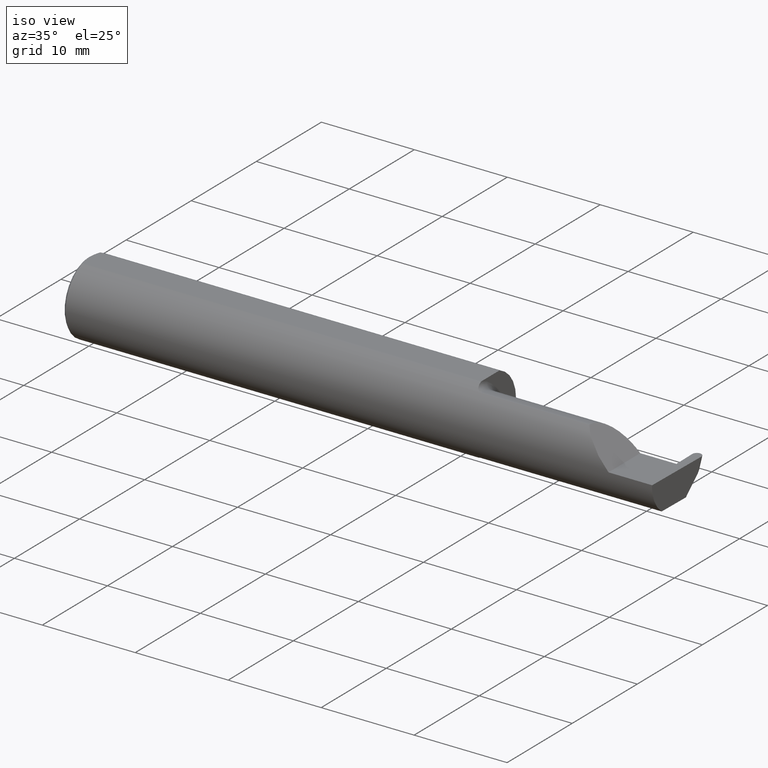
[diagram: clean part render]
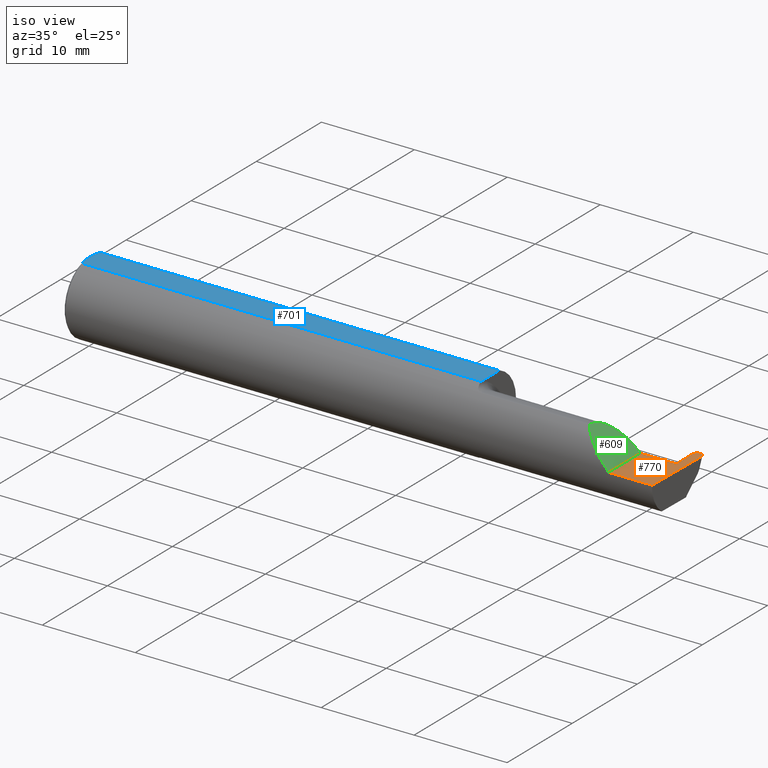
[diagram: same view with three faces highlighted in distinct colors, each labeled with its STEP entity id]
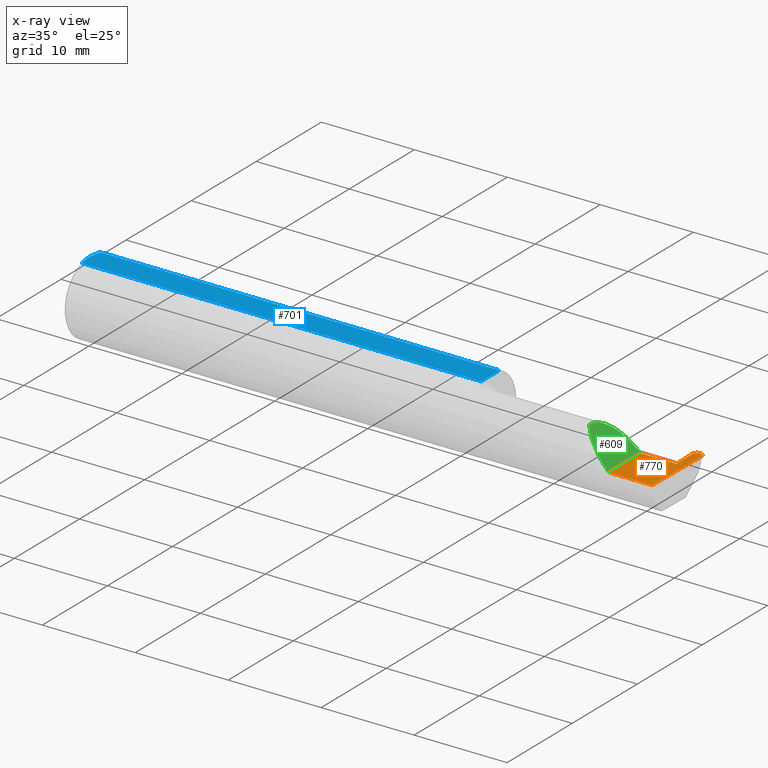
[diagram: x-ray of the same camera — body ghosted, the three highlighted faces saturated]
A machine part, iso view with three faces highlighted in distinct colors.
The next image is the same camera in x-ray (body ghosted, the three faces saturated) — at least one of them is partly hidden behind the body in this view.
Their STEP definitions:

[orange] entity #770 — the highlighted planar face has unit normal (-0, 0, -1).
#31 = VERTEX_POINT ( 'NONE', #742 ) ;
#37 = VECTOR ( 'NONE', #378, 39.37007874015748143 ) ;
#58 = CARTESIAN_POINT ( 'NONE',  ( 2.500000000000000000, -0.2500000000000000555, 0.000000000000000000 ) ) ;
#62 = VERTEX_POINT ( 'NONE', #786 ) ;
#81 = VECTOR ( 'NONE', #454, 39.37007874015748143 ) ;
#88 = ORIENTED_EDGE ( 'NONE', *, *, #279, .F. ) ;
#103 = AXIS2_PLACEMENT_3D ( 'NONE', #58, #739, #602 ) ;
#104 = VERTEX_POINT ( 'NONE', #316 ) ;
#112 = EDGE_CURVE ( 'NONE', #221, #62, #357, .T. ) ;
#124 = ORIENTED_EDGE ( 'NONE', *, *, #160, .T. ) ;
#130 = ORIENTED_EDGE ( 'NONE', *, *, #613, .F. ) ;
#132 = CARTESIAN_POINT ( 'NONE',  ( 1.699999999999999956, 0.03590000000000000135, 9.797174393178831081E-17 ) ) ;
#147 = CARTESIAN_POINT ( 'NONE',  ( 2.480536137934067575, 0.1539000000000000090, 0.000000000000000000 ) ) ;
#148 = CARTESIAN_POINT ( 'NONE',  ( 2.499997065210553426, 0.1342945264389270033, 0.000000000000000000 ) ) ;
#153 = ORIENTED_EDGE ( 'NONE', *, *, #399, .F. ) ;
#160 = EDGE_CURVE ( 'NONE', #582, #62, #541, .T. ) ;
#168 = EDGE_CURVE ( 'NONE', #104, #526, #760, .T. ) ;
#173 = VECTOR ( 'NONE', #654, 39.37007874015748143 ) ;
#174 = CARTESIAN_POINT ( 'NONE',  ( 2.499981158297549744, 0.1333832200032812054, 0.000000000000000000 ) ) ;
#175 = DIRECTION ( 'NONE',  ( 1.000000000000000000, -0.000000000000000000, -0.000000000000000000 ) ) ;
#204 = CARTESIAN_POINT ( 'NONE',  ( 2.463182057637018030, 0.03590000000000000135, 0.000000000000000000 ) ) ;
#209 = LINE ( 'NONE', #522, #354 ) ;
#210 = ORIENTED_EDGE ( 'NONE', *, *, #314, .F. ) ;
#221 = VERTEX_POINT ( 'NONE', #147 ) ;
#243 = FACE_OUTER_BOUND ( 'NONE', #642, .T. ) ;
#252 = PLANE ( 'NONE',  #103 ) ;
#258 = CARTESIAN_POINT ( 'NONE',  ( 2.461270922331974642, 0.1453888682971902213, 2.390809088810166648E-18 ) ) ;
#260 = CARTESIAN_POINT ( 'NONE',  ( 2.492285715036194116, 0.1538999999999999257, -1.422725471777829947E-18 ) ) ;
#271 = CARTESIAN_POINT ( 'NONE',  ( 3.749399456654646757E-32, -0.1560999999999999333, 3.061616997868383634E-16 ) ) ;
#279 = EDGE_CURVE ( 'NONE', #582, #513, #396, .T. ) ;
#314 = EDGE_CURVE ( 'NONE', #444, #488, #209, .T. ) ;
#316 = CARTESIAN_POINT ( 'NONE',  ( 2.310000000000000053, 0.03590000000000000135, 9.797174393178831081E-17 ) ) ;
#326 = CARTESIAN_POINT ( 'NONE',  ( 2.500190717668024920, 0.1453888682971899160, -2.390809088810165492E-18 ) ) ;
#346 = CARTESIAN_POINT ( 'NONE',  ( 2.494928209896765114, -0.1560999999999999888, 0.000000000000000000 ) ) ;
#354 = VECTOR ( 'NONE', #457, 39.37007874015748854 ) ;
#357 = LINE ( 'NONE', #604, #360 ) ;
#360 = VECTOR ( 'NONE', #175, 39.37007874015748143 ) ;
#362 = DIRECTION ( 'NONE',  ( -0.000000000000000000, 1.000000000000000000, -0.000000000000000000 ) ) ;
#378 = DIRECTION ( 'NONE',  ( 1.000000000000000000, 0.000000000000000000, 0.000000000000000000 ) ) ;
#384 = EDGE_CURVE ( 'NONE', #513, #31, #649, .T. ) ;
#396 = LINE ( 'NONE', #148, #81 ) ;
#399 = EDGE_CURVE ( 'NONE', #526, #444, #761, .T. ) ;
#417 = CARTESIAN_POINT ( 'NONE',  ( 2.463182057637018030, 0.03590000000000000135, 0.000000000000000000 ) ) ;
#420 = VECTOR ( 'NONE', #516, 39.37007874015748143 ) ;
#440 = CARTESIAN_POINT ( 'NONE',  ( 2.461480481702449818, 0.1333832200032812332, 0.000000000000000000 ) ) ;
#444 = VERTEX_POINT ( 'NONE', #417 ) ;
#454 = DIRECTION ( 'NONE',  ( -0.01745240643727612520, -0.9998476951563912696, 0.000000000000000000 ) ) ;
#457 = DIRECTION ( 'NONE',  ( -0.01745240643727553193, 0.9998476951563912696, -0.000000000000000000 ) ) ;
#478 = CARTESIAN_POINT ( 'NONE',  ( 2.461480481702449818, 0.1333832200032812332, 0.000000000000000000 ) ) ;
#488 = VERTEX_POINT ( 'NONE', #478 ) ;
#490 = CARTESIAN_POINT ( 'NONE',  ( 2.469175924963806334, 0.1539000000000003143, 1.422725471777793932E-18 ) ) ;
#493 = ORIENTED_EDGE ( 'NONE', *, *, #384, .F. ) ;
#513 = VERTEX_POINT ( 'NONE', #346 ) ;
#516 = DIRECTION ( 'NONE',  ( -1.000000000000000000, -0.000000000000000000, -0.000000000000000000 ) ) ;
#522 = CARTESIAN_POINT ( 'NONE',  ( 2.461464574789446136, 0.1342945264389270033, 0.000000000000000000 ) ) ;
#526 = VERTEX_POINT ( 'NONE', #723 ) ;
#534 = ORIENTED_EDGE ( 'NONE', *, *, #168, .F. ) ;
#541 =( BOUNDED_CURVE ( )  B_SPLINE_CURVE ( 3, ( #754, #326, #260, #689 ),
 .UNSPECIFIED., .F., .T. ) 
 B_SPLINE_CURVE_WITH_KNOTS ( ( 4, 4 ),
 ( 1.677524580234104778, 3.253450286950880344 ),
 .UNSPECIFIED. ) 
 CURVE ( )  GEOMETRIC_REPRESENTATION_ITEM ( )  RATIONAL_B_SPLINE_CURVE ( ( 1.000000000000000000, 0.8035272986452582922, 0.8035272986452582922, 1.000000000000000000 ) ) 
 REPRESENTATION_ITEM ( '' )  );
#542 = CARTESIAN_POINT ( 'NONE',  ( 2.480536137934067575, 0.1539000000000000090, 0.000000000000000000 ) ) ;
#582 = VERTEX_POINT ( 'NONE', #174 ) ;
#593 =( BOUNDED_CURVE ( )  B_SPLINE_CURVE ( 3, ( #542, #490, #258, #440 ),
 .UNSPECIFIED., .F., .F. ) 
 B_SPLINE_CURVE_WITH_KNOTS ( ( 4, 4 ),
 ( 6.171327673818470139, 7.747253380535275014 ),
 .UNSPECIFIED. ) 
 CURVE ( )  GEOMETRIC_REPRESENTATION_ITEM ( )  RATIONAL_B_SPLINE_CURVE ( ( 1.000000000000000000, 0.8035272986452512978, 0.8035272986452512978, 1.000000000000000000 ) ) 
 REPRESENTATION_ITEM ( '' )  );
#602 = DIRECTION ( 'NONE',  ( -1.000000000000000000, 0.000000000000000000, 1.224646799147353947E-16 ) ) ;
#604 = CARTESIAN_POINT ( 'NONE',  ( -3.937007874019685528E-05, 0.1539000000000000090, 0.000000000000000000 ) ) ;
#613 = EDGE_CURVE ( 'NONE', #31, #104, #683, .T. ) ;
#642 = EDGE_LOOP ( 'NONE', ( #681, #765, #210, #153, #534, #130, #493, #88, #124 ) ) ;
#649 = LINE ( 'NONE', #271, #420 ) ;
#654 = DIRECTION ( 'NONE',  ( 1.000000000000000000, 7.255572736540064728E-15, -0.000000000000000000 ) ) ;
#669 = CARTESIAN_POINT ( 'NONE',  ( 2.310000000000000053, -0.2500000000000000555, 2.326828918379970872E-17 ) ) ;
#681 = ORIENTED_EDGE ( 'NONE', *, *, #112, .F. ) ;
#683 = LINE ( 'NONE', #669, #741 ) ;
#689 = CARTESIAN_POINT ( 'NONE',  ( 2.480925502065933319, 0.1539000000000000090, 0.000000000000000000 ) ) ;
#723 = CARTESIAN_POINT ( 'NONE',  ( 2.456122359975489111, 0.03589999999999995278, 0.000000000000000000 ) ) ;
#739 = DIRECTION ( 'NONE',  ( -1.224646799147353947E-16, 0.000000000000000000, -1.000000000000000000 ) ) ;
#741 = VECTOR ( 'NONE', #362, 39.37007874015748143 ) ;
#742 = CARTESIAN_POINT ( 'NONE',  ( 2.310000000000000053, -0.1560999999999999888, 2.326828918379970872E-17 ) ) ;
#754 = CARTESIAN_POINT ( 'NONE',  ( 2.499981158297549744, 0.1333832200032812054, 0.000000000000000000 ) ) ;
#760 = LINE ( 'NONE', #132, #37 ) ;
#761 = LINE ( 'NONE', #204, #173 ) ;
#765 = ORIENTED_EDGE ( 'NONE', *, *, #777, .T. ) ;
#770 = ADVANCED_FACE ( 'NONE', ( #243 ), #252, .F. ) ;
#777 = EDGE_CURVE ( 'NONE', #221, #488, #593, .T. ) ;
#786 = CARTESIAN_POINT ( 'NONE',  ( 2.480925502065933319, 0.1539000000000000090, 0.000000000000000000 ) ) ;

[blue] entity #701 — the highlighted planar face has unit normal (0, 0, 1).
#3 = CARTESIAN_POINT ( 'NONE',  ( 0.004356241145161599167, -0.03705973501792377695, 0.1460999999999998689 ) ) ;
#15 = CARTESIAN_POINT ( 'NONE',  ( 0.006903212852520951119, -0.04617911398309931109, 0.1460999999999998689 ) ) ;
#74 = EDGE_CURVE ( 'NONE', #289, #165, #486, .T. ) ;
#77 = CARTESIAN_POINT ( 'NONE',  ( 0.0009113193687667381273, -0.01867274705588958111, 0.1460999999999998411 ) ) ;
#84 = PLANE ( 'NONE',  #241 ) ;
#123 = CARTESIAN_POINT ( 'NONE',  ( 0.009999999999999825001, 0.05497272050753933964, 0.1460999999999998689 ) ) ;
#156 = EDGE_CURVE ( 'NONE', #469, #289, #599, .T. ) ;
#165 = VERTEX_POINT ( 'NONE', #270 ) ;
#181 = ORIENTED_EDGE ( 'NONE', *, *, #156, .F. ) ;
#215 = EDGE_CURVE ( 'NONE', #469, #501, #442, .T. ) ;
#240 = CARTESIAN_POINT ( 'NONE',  ( 0.000000000000000000, 0.000000000000000000, 0.1460999999999998689 ) ) ;
#241 = AXIS2_PLACEMENT_3D ( 'NONE', #514, #382, #693 ) ;
#248 = CARTESIAN_POINT ( 'NONE',  ( 0.006876379561362597204, 0.04610291843171884091, 0.1460999999999998689 ) ) ;
#250 = ORIENTED_EDGE ( 'NONE', *, *, #436, .T. ) ;
#254 = CARTESIAN_POINT ( 'NONE',  ( 0.0009290501461037190250, 0.01879395969143605669, 0.1460999999999998689 ) ) ;
#269 = FACE_OUTER_BOUND ( 'NONE', #411, .T. ) ;
#270 = CARTESIAN_POINT ( 'NONE',  ( 0.009999999999999825001, 0.05497272050753933964, 0.1460999999999998689 ) ) ;
#289 = VERTEX_POINT ( 'NONE', #764 ) ;
#298 = LINE ( 'NONE', #416, #573 ) ;
#323 = DIRECTION ( 'NONE',  ( 1.000000000000000000, 0.000000000000000000, 0.000000000000000000 ) ) ;
#370 = CARTESIAN_POINT ( 'NONE',  ( 0.004370115738486759528, 0.03710696786819756010, 0.1460999999999998411 ) ) ;
#382 = DIRECTION ( 'NONE',  ( 0.000000000000000000, 0.000000000000000000, 1.000000000000000000 ) ) ;
#383 = CARTESIAN_POINT ( 'NONE',  ( 0.009999999999999825001, -0.05497272050753933964, 0.1460999999999998689 ) ) ;
#411 = EDGE_LOOP ( 'NONE', ( #583, #426, #250, #645, #181 ) ) ;
#416 = CARTESIAN_POINT ( 'NONE',  ( 1.699999999999999956, 0.1560999999999999888, 0.1460999999999998689 ) ) ;
#425 = EDGE_CURVE ( 'NONE', #501, #587, #298, .T. ) ;
#426 = ORIENTED_EDGE ( 'NONE', *, *, #425, .T. ) ;
#436 = EDGE_CURVE ( 'NONE', #587, #165, #472, .T. ) ;
#442 = LINE ( 'NONE', #627, #569 ) ;
#469 = VERTEX_POINT ( 'NONE', #586 ) ;
#472 = LINE ( 'NONE', #595, #700 ) ;
#486 = B_SPLINE_CURVE_WITH_KNOTS ( 'NONE', 3,
 ( #240, #745, #254, #370, #248, #123 ),
 .UNSPECIFIED., .F., .F.,
 ( 4, 2, 4 ),
 ( 0.002914391749015466521, 0.003623333355014861108, 0.004332274961014255694 ),
 .UNSPECIFIED. ) ;
#501 = VERTEX_POINT ( 'NONE', #528 ) ;
#514 = CARTESIAN_POINT ( 'NONE',  ( 2.814752029381861309, 0.1560999999999999888, 0.1460999999999998689 ) ) ;
#528 = CARTESIAN_POINT ( 'NONE',  ( 1.699999999999999956, -0.05497272050753934658, 0.1460999999999998689 ) ) ;
#569 = VECTOR ( 'NONE', #323, 39.37007874015748143 ) ;
#573 = VECTOR ( 'NONE', #774, 39.37007874015748143 ) ;
#583 = ORIENTED_EDGE ( 'NONE', *, *, #215, .T. ) ;
#586 = CARTESIAN_POINT ( 'NONE',  ( 0.009999999999999825001, -0.05497272050753933964, 0.1460999999999998689 ) ) ;
#587 = VERTEX_POINT ( 'NONE', #805 ) ;
#595 = CARTESIAN_POINT ( 'NONE',  ( 0.000000000000000000, 0.05497272050753933964, 0.1460999999999998689 ) ) ;
#599 = B_SPLINE_CURVE_WITH_KNOTS ( 'NONE', 3,
 ( #383, #15, #3, #77, #640, #763 ),
 .UNSPECIFIED., .F., .F.,
 ( 4, 2, 4 ),
 ( 0.001497827971916944247, 0.002206109860466205601, 0.002914391749015466521 ),
 .UNSPECIFIED. ) ;
#627 = CARTESIAN_POINT ( 'NONE',  ( 0.000000000000000000, -0.05497272050753933964, 0.1460999999999998689 ) ) ;
#640 = CARTESIAN_POINT ( 'NONE',  ( -3.339777545965282799E-16, -0.009387766318748866357, 0.1460999999999998689 ) ) ;
#645 = ORIENTED_EDGE ( 'NONE', *, *, #74, .F. ) ;
#693 = DIRECTION ( 'NONE',  ( 1.000000000000000000, 0.000000000000000000, -0.000000000000000000 ) ) ;
#700 = VECTOR ( 'NONE', #785, 39.37007874015748143 ) ;
#701 = ADVANCED_FACE ( 'NONE', ( #269 ), #84, .T. ) ;
#745 = CARTESIAN_POINT ( 'NONE',  ( -3.378711048560533498E-16, 0.009396510398413096196, 0.1460999999999998689 ) ) ;
#763 = CARTESIAN_POINT ( 'NONE',  ( 0.000000000000000000, 0.000000000000000000, 0.1460999999999998689 ) ) ;
#764 = CARTESIAN_POINT ( 'NONE',  ( 0.000000000000000000, 0.000000000000000000, 0.1460999999999998689 ) ) ;
#774 = DIRECTION ( 'NONE',  ( 0.000000000000000000, 1.000000000000000000, 0.000000000000000000 ) ) ;
#785 = DIRECTION ( 'NONE',  ( -1.000000000000000000, -0.000000000000000000, -0.000000000000000000 ) ) ;
#805 = CARTESIAN_POINT ( 'NONE',  ( 1.699999999999999956, 0.05497272050753933964, 0.1460999999999998689 ) ) ;

[green] entity #609 — the highlighted planar face has unit normal (-0.7071, 0, -0.7071).
#31 = VERTEX_POINT ( 'NONE', #742 ) ;
#65 = CARTESIAN_POINT ( 'NONE',  ( 2.185081329771846992, -0.09360841750841733533, 0.1249186702281521039 ) ) ;
#73 = CARTESIAN_POINT ( 'NONE',  ( 2.310000000000000053, -0.1560999999999999888, 2.326828918379970872E-17 ) ) ;
#75 = VERTEX_POINT ( 'NONE', #65 ) ;
#104 = VERTEX_POINT ( 'NONE', #316 ) ;
#143 = CARTESIAN_POINT ( 'NONE',  ( 2.215117332916549220, -0.1336908980339253650, 0.09488266708345012568 ) ) ;
#144 = CARTESIAN_POINT ( 'NONE',  ( 2.184999999999999165, -0.09060321336276835891, 0.1250000000000000555 ) ) ;
#155 = ORIENTED_EDGE ( 'NONE', *, *, #613, .T. ) ;
#182 = AXIS2_PLACEMENT_3D ( 'NONE', #315, #560, #253 ) ;
#186 = EDGE_CURVE ( 'NONE', #31, #75, #619, .T. ) ;
#194 = CARTESIAN_POINT ( 'NONE',  ( 2.259912409421231949, -0.1560999999999999333, 0.05008759057876778498 ) ) ;
#235 = CARTESIAN_POINT ( 'NONE',  ( 2.236776695296636142, 0.03589999999999995972, 0.07322330470336316233 ) ) ;
#244 = PLANE ( 'NONE',  #182 ) ;
#253 = DIRECTION ( 'NONE',  ( -0.7071067811865513475, 0.000000000000000000, 0.7071067811865436870 ) ) ;
#277 = CARTESIAN_POINT ( 'NONE',  ( 2.185027112864298182, -0.09210618219364773152, 0.1249728871357008025 ) ) ;
#315 = CARTESIAN_POINT ( 'NONE',  ( 2.310000000000000053, -0.2500000000000000555, 2.326828918379970872E-17 ) ) ;
#316 = CARTESIAN_POINT ( 'NONE',  ( 2.310000000000000053, 0.03590000000000000135, 9.797174393178831081E-17 ) ) ;
#324 = VERTEX_POINT ( 'NONE', #468 ) ;
#348 = EDGE_CURVE ( 'NONE', #75, #324, #714, .T. ) ;
#362 = DIRECTION ( 'NONE',  ( -0.000000000000000000, 1.000000000000000000, -0.000000000000000000 ) ) ;
#389 = CARTESIAN_POINT ( 'NONE',  ( 2.185081329771846992, -0.09360841750841733533, 0.1249186702281521039 ) ) ;
#397 = EDGE_LOOP ( 'NONE', ( #517, #672, #155, #647 ) ) ;
#468 = CARTESIAN_POINT ( 'NONE',  ( 2.184999999999998721, -0.08910000000000001252, 0.1250000000000000278 ) ) ;
#480 = EDGE_CURVE ( 'NONE', #324, #104, #727, .T. ) ;
#504 = FACE_OUTER_BOUND ( 'NONE', #397, .T. ) ;
#517 = ORIENTED_EDGE ( 'NONE', *, *, #348, .F. ) ;
#539 = CARTESIAN_POINT ( 'NONE',  ( 2.310000000000000053, 0.03590000000000000135, 9.797174393178831081E-17 ) ) ;
#560 = DIRECTION ( 'NONE',  ( -0.7071067811865436870, 0.000000000000000000, -0.7071067811865513475 ) ) ;
#609 = ADVANCED_FACE ( 'NONE', ( #504 ), #244, .F. ) ;
#613 = EDGE_CURVE ( 'NONE', #31, #104, #683, .T. ) ;
#619 =( BOUNDED_CURVE ( )  B_SPLINE_CURVE ( 3, ( #73, #194, #143, #389 ),
 .UNSPECIFIED., .F., .F. ) 
 B_SPLINE_CURVE_WITH_KNOTS ( ( 4, 4 ),
 ( 4.712388980384689674, 5.640097190903854418 ),
 .UNSPECIFIED. ) 
 CURVE ( )  GEOMETRIC_REPRESENTATION_ITEM ( )  RATIONAL_B_SPLINE_CURVE ( ( 1.000000000000000000, 0.9295565493311498395, 0.9295565493311498395, 1.000000000000000000 ) ) 
 REPRESENTATION_ITEM ( '' )  );
#633 = CARTESIAN_POINT ( 'NONE',  ( 2.184999999999998721, -0.08910000000000001252, 0.1250000000000000278 ) ) ;
#647 = ORIENTED_EDGE ( 'NONE', *, *, #480, .F. ) ;
#655 = CARTESIAN_POINT ( 'NONE',  ( 2.184999999999998721, -0.08910000000000001252, 0.1250000000000000278 ) ) ;
#669 = CARTESIAN_POINT ( 'NONE',  ( 2.310000000000000053, -0.2500000000000000555, 2.326828918379970872E-17 ) ) ;
#672 = ORIENTED_EDGE ( 'NONE', *, *, #186, .F. ) ;
#683 = LINE ( 'NONE', #669, #741 ) ;
#695 = CARTESIAN_POINT ( 'NONE',  ( 2.185081329771846992, -0.09360841750841733533, 0.1249186702281521039 ) ) ;
#714 =( BOUNDED_CURVE ( )  B_SPLINE_CURVE ( 3, ( #695, #277, #144, #633 ),
 .UNSPECIFIED., .F., .F. ) 
 B_SPLINE_CURVE_WITH_KNOTS ( ( 4, 4 ),
 ( 6.247110142813124156, 6.283185307179586232 ),
 .UNSPECIFIED. ) 
 CURVE ( )  GEOMETRIC_REPRESENTATION_ITEM ( )  RATIONAL_B_SPLINE_CURVE ( ( 1.000000000000000000, 0.9998915514833921492, 0.9998915514833921492, 1.000000000000000000 ) ) 
 REPRESENTATION_ITEM ( '' )  );
#727 =( BOUNDED_CURVE ( )  B_SPLINE_CURVE ( 3, ( #655, #782, #235, #539 ),
 .UNSPECIFIED., .F., .F. ) 
 B_SPLINE_CURVE_WITH_KNOTS ( ( 4, 4 ),
 ( 0.000000000000000000, 1.570796326794896336 ),
 .UNSPECIFIED. ) 
 CURVE ( )  GEOMETRIC_REPRESENTATION_ITEM ( )  RATIONAL_B_SPLINE_CURVE ( ( 1.000000000000000000, 0.8047378541243650485, 0.8047378541243650485, 1.000000000000000000 ) ) 
 REPRESENTATION_ITEM ( '' )  );
#741 = VECTOR ( 'NONE', #362, 39.37007874015748143 ) ;
#742 = CARTESIAN_POINT ( 'NONE',  ( 2.310000000000000053, -0.1560999999999999888, 2.326828918379970872E-17 ) ) ;
#782 = CARTESIAN_POINT ( 'NONE',  ( 2.184999999999998277, -0.01587669529663690224, 0.1250000000000000555 ) ) ;